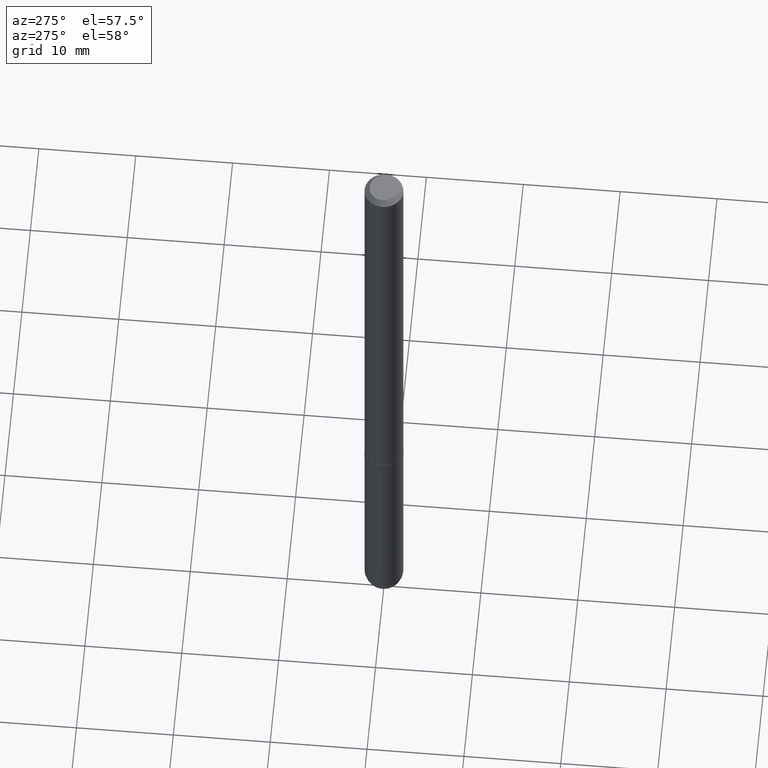
[diagram: clean part render]
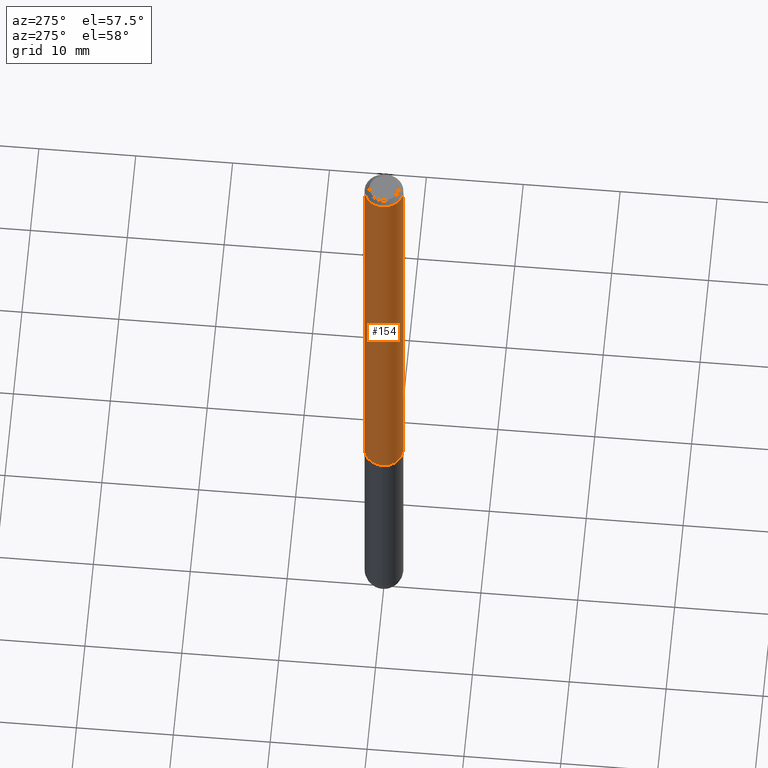
[diagram: same view with one face highlighted and labeled with its STEP entity id]
A machine part, auxiliary view. The second image highlights one B-rep face of the part: STEP entity #154.
In plain terms, the highlighted cylindrical surface (edge-blend (fillet) strip) has radius 2.0003 mm, axis along (-0, 0, 1).
Its self-contained STEP definition (entity closure, byte-faithful):
#1 = CIRCLE ( 'NONE', #163, 0.07875000000000000056 ) ;
#7 = DIRECTION ( 'NONE',  ( -2.452606242276134078E-29, 3.481260124123204048E-15, 1.000000000000000000 ) ) ;
#15 = DIRECTION ( 'NONE',  ( -2.452606242276133797E-29, 3.481260124123203654E-15, 1.000000000000000000 ) ) ;
#44 = CARTESIAN_POINT ( 'NONE',  ( -5.499083108677465071E-16, -0.07875000000000705047, -1.967499999999999361 ) ) ;
#65 = CARTESIAN_POINT ( 'NONE',  ( 5.499083108677938387E-16, 0.07874999999999993117, -0.02000000000000029185 ) ) ;
#93 = VECTOR ( 'NONE', #288, 39.37007874015748143 ) ;
#99 = CIRCLE ( 'NONE', #317, 0.07875000000000019484 ) ;
#101 = VERTEX_POINT ( 'NONE', #44 ) ;
#103 = ORIENTED_EDGE ( 'NONE', *, *, #282, .T. ) ;
#117 = LINE ( 'NONE', #373, #93 ) ;
#121 = AXIS2_PLACEMENT_3D ( 'NONE', #343, #216, #124 ) ;
#124 = DIRECTION ( 'NONE',  ( -6.982962677686265922E-15, -1.000000000000000000, 3.481260124123203654E-15 ) ) ;
#126 = CARTESIAN_POINT ( 'NONE',  ( -5.402642173245075938E-16, -0.07875000000000006994, -0.01999999999999974368 ) ) ;
#127 = VERTEX_POINT ( 'NONE', #321 ) ;
#139 = VECTOR ( 'NONE', #7, 39.37007874015748143 ) ;
#143 = EDGE_LOOP ( 'NONE', ( #366, #248, #103, #196 ) ) ;
#150 = FACE_OUTER_BOUND ( 'NONE', #143, .T. ) ;
#154 = ADVANCED_FACE ( 'NONE', ( #150 ), #411, .T. ) ;
#163 = AXIS2_PLACEMENT_3D ( 'NONE', #249, #184, #313 ) ;
#166 = VERTEX_POINT ( 'NONE', #126 ) ;
#184 = DIRECTION ( 'NONE',  ( -2.452606242276133797E-29, 3.481260124123203654E-15, 1.000000000000000000 ) ) ;
#196 = ORIENTED_EDGE ( 'NONE', *, *, #210, .F. ) ;
#210 = EDGE_CURVE ( 'NONE', #362, #166, #1, .T. ) ;
#216 = DIRECTION ( 'NONE',  ( -2.452606242276133797E-29, 3.481260124123203654E-15, 1.000000000000000000 ) ) ;
#233 = LINE ( 'NONE', #286, #139 ) ;
#248 = ORIENTED_EDGE ( 'NONE', *, *, #267, .T. ) ;
#249 = CARTESIAN_POINT ( 'NONE',  ( 4.905212484552271764E-31, -6.962520248246412533E-17, -0.02000000000000001776 ) ) ;
#267 = EDGE_CURVE ( 'NONE', #127, #101, #99, .T. ) ;
#282 = EDGE_CURVE ( 'NONE', #101, #166, #233, .T. ) ;
#286 = CARTESIAN_POINT ( 'NONE',  ( -5.499083108677941345E-16, -0.07875000000000009770, 2.741492347747026245E-16 ) ) ;
#288 = DIRECTION ( 'NONE',  ( -2.452606242276134078E-29, 3.481260124123204048E-15, 1.000000000000000000 ) ) ;
#295 = CARTESIAN_POINT ( 'NONE',  ( 4.825502781678292621E-29, -6.849379294212400691E-15, -1.967499999999999805 ) ) ;
#313 = DIRECTION ( 'NONE',  ( -6.982962677686264344E-15, -1.000000000000000000, 3.469013325287953293E-15 ) ) ;
#317 = AXIS2_PLACEMENT_3D ( 'NONE', #295, #15, #356 ) ;
#321 = CARTESIAN_POINT ( 'NONE',  ( 5.595524044111042425E-16, 0.07874999999999335309, -1.967500000000000027 ) ) ;
#326 = EDGE_CURVE ( 'NONE', #127, #362, #117, .T. ) ;
#343 = CARTESIAN_POINT ( 'NONE',  ( 0.000000000000000000, 0.000000000000000000, 0.000000000000000000 ) ) ;
#356 = DIRECTION ( 'NONE',  ( -6.982962677686265922E-15, -1.000000000000000000, 3.469013325287944616E-15 ) ) ;
#362 = VERTEX_POINT ( 'NONE', #65 ) ;
#366 = ORIENTED_EDGE ( 'NONE', *, *, #326, .F. ) ;
#373 = CARTESIAN_POINT ( 'NONE',  ( 5.595524044110794920E-16, 0.07875000000000009770, -2.741492347747026245E-16 ) ) ;
#411 = CYLINDRICAL_SURFACE ( 'NONE', #121, 0.07875000000000009770 ) ;